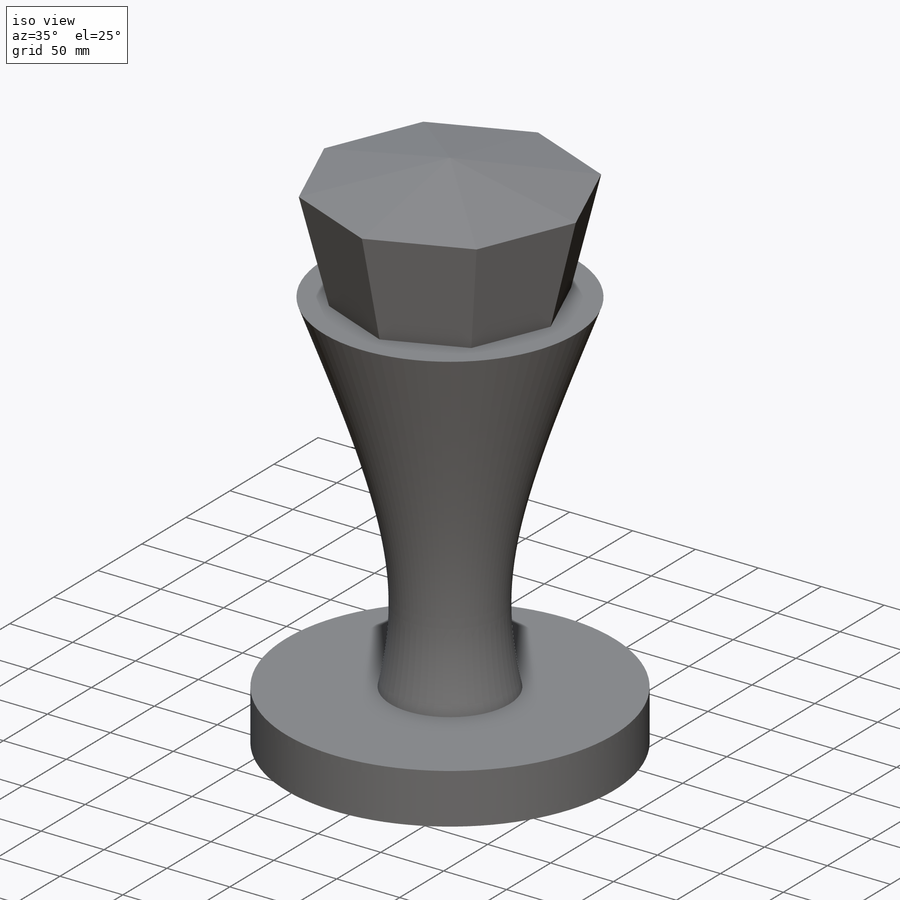
[diagram: iso view]
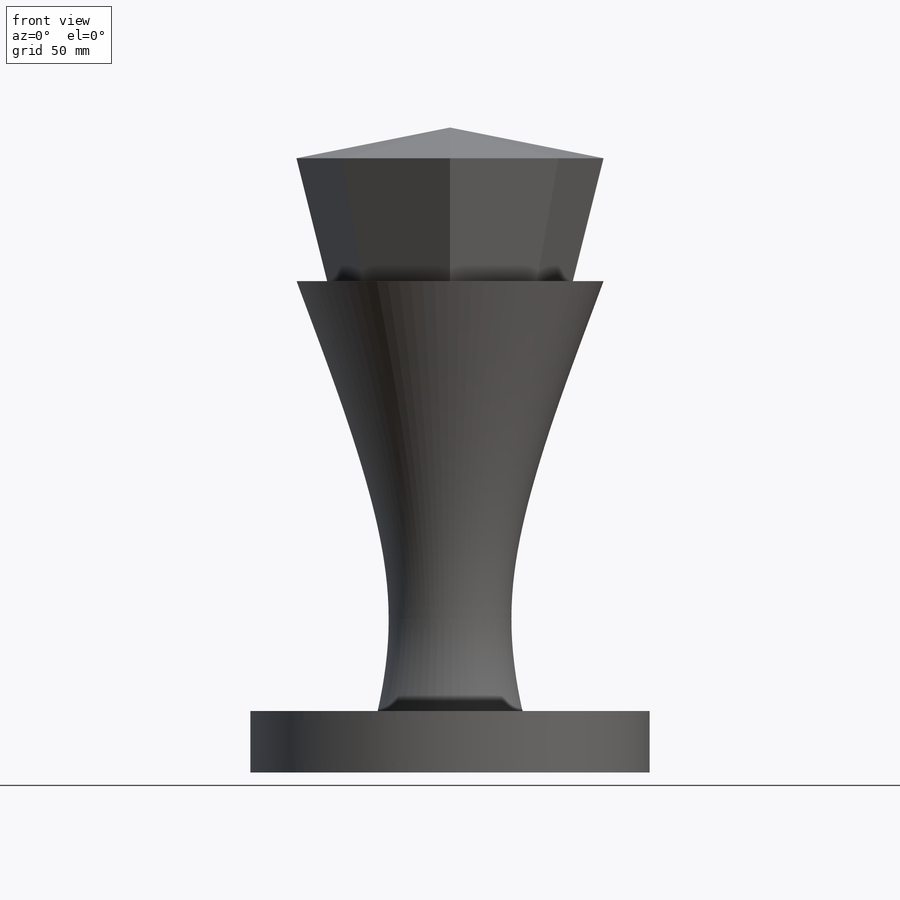
[diagram: front view]
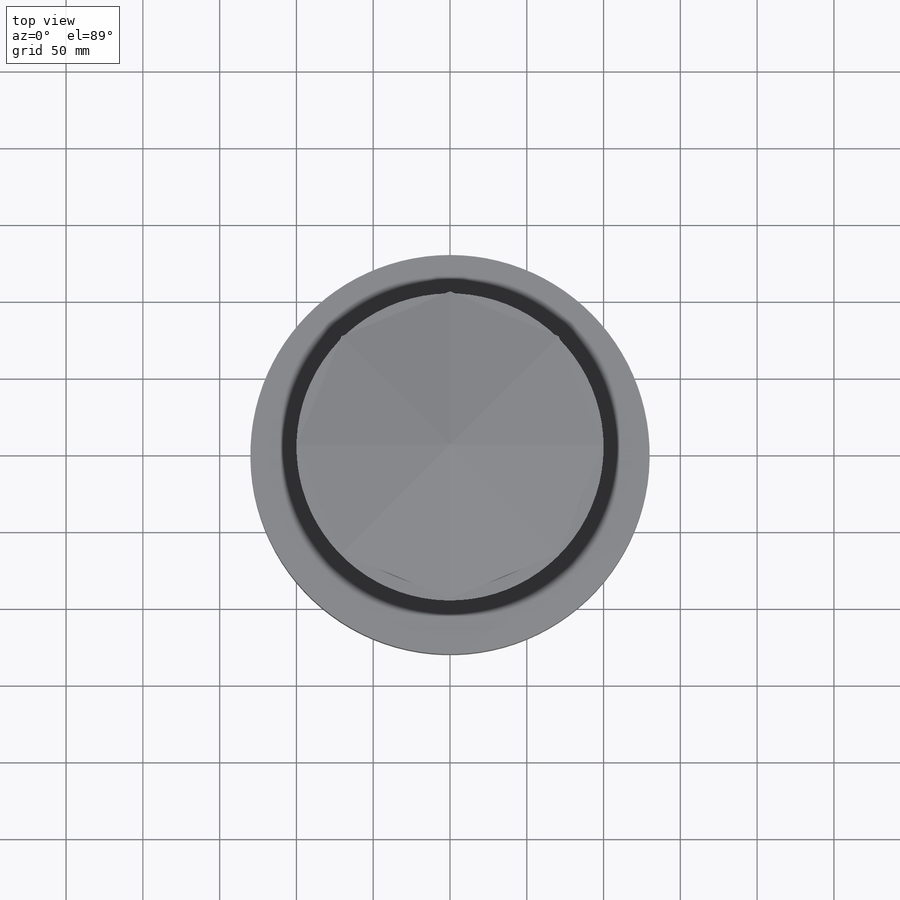
[diagram: top view]
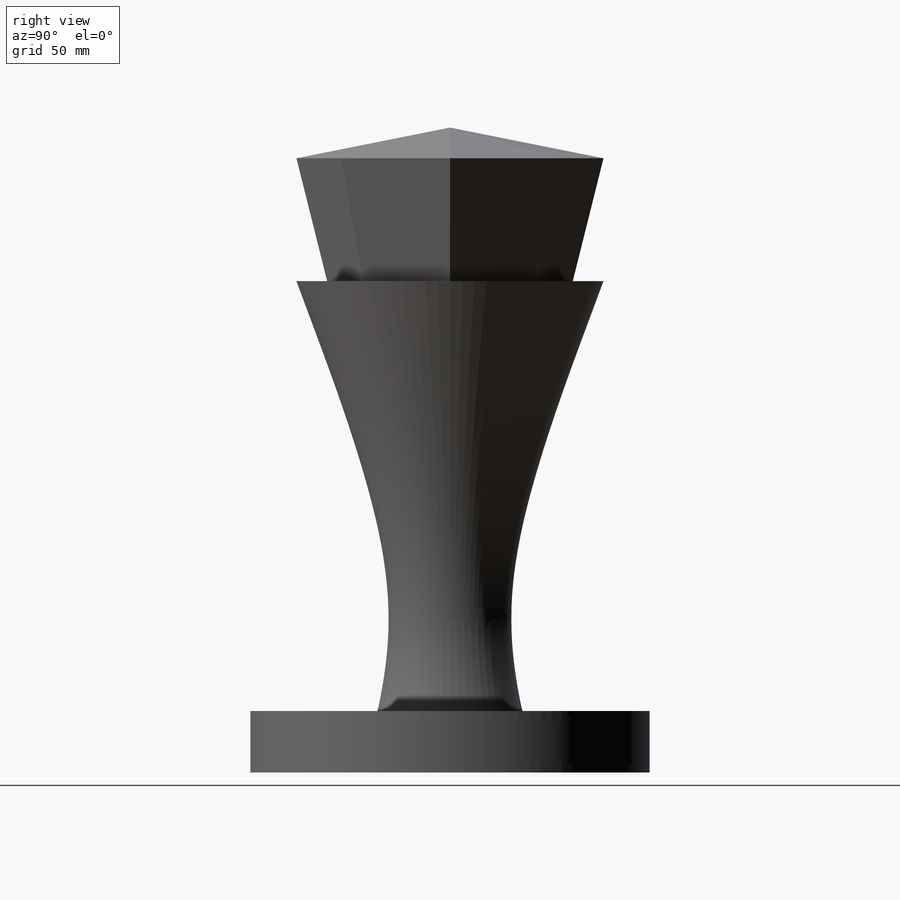
[diagram: right view]
SOLIDWORKS PART (.sldprt)
format: sldprt  version: not decoded by parser v0  size: 329,216 bytes
history: native  units: mm
features: sketch x6, plane x4, material x1, revolve x1 (+16 scaffold rows collapsed)
feature tree (28):
  scaffold x16  (default folders/planes/origin — collapsed)
  material  "Material <not specified>"
  sketch  "Sketch1"  dims[c1.D1=130.0mm c1.D2=40.0mm c1.D3=60.0mm c1.D4=40.0mm c1.D5=40.0mm c1.D6=100.0mm c1.D7=60.0mm c1.D8=220.0mm c1.D9=44.0mm c1.D10=44.0mm c1.D11=44.0mm c1.D12=44.0mm c1.D13=12.0mm c1.D14=12.0mm c1.D15=12.0mm c1.D16=12.0mm c2.D9=44.0mm c2.D13=12.0mm]
  revolve  "Revolve1"  Angle=360deg
  sketch  "Sketch2"  dims[D1=160.0mm]
  plane  "Plane1"  Offset=80mm
  sketch  "Sketch3"  dims[D1=200.0mm]
  plane  "Plane2"  Offset=20mm
  sketch  "Sketch4"
  sketch  "Sketch5"  dims[c1.D1=~297.082388mm c2.D1=45.0deg]
  plane  "Plane3"
  sketch  "Sketch6"
  plane  "S-S Section Plane"
decode coverage: 5 of 7 modeling features carry decoded parameters
note: ~ marks probable driven/reference dimensions
note: suppression state not decoded; provenance and decode notes live in map.json
